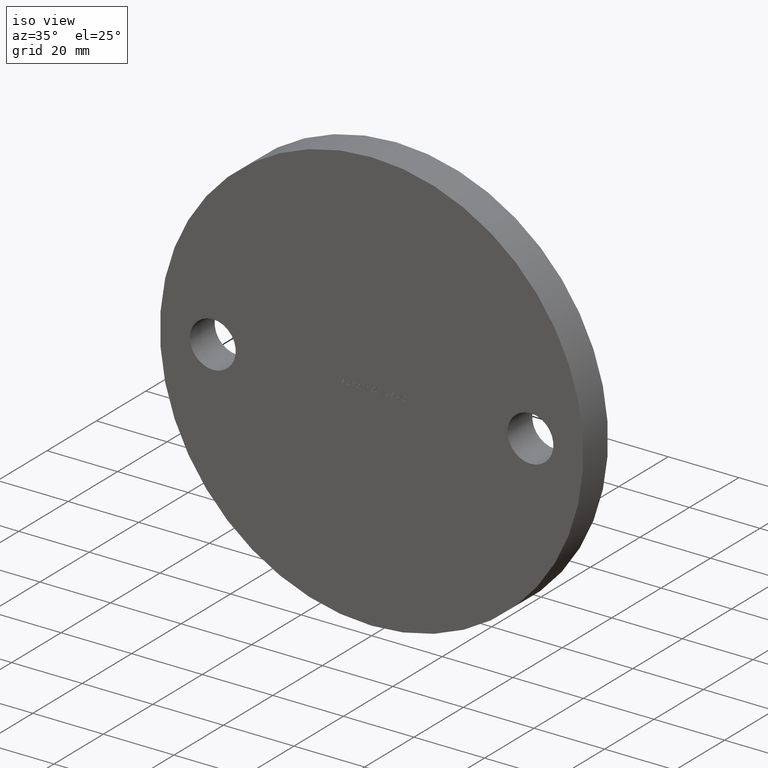
[diagram: clean part render]
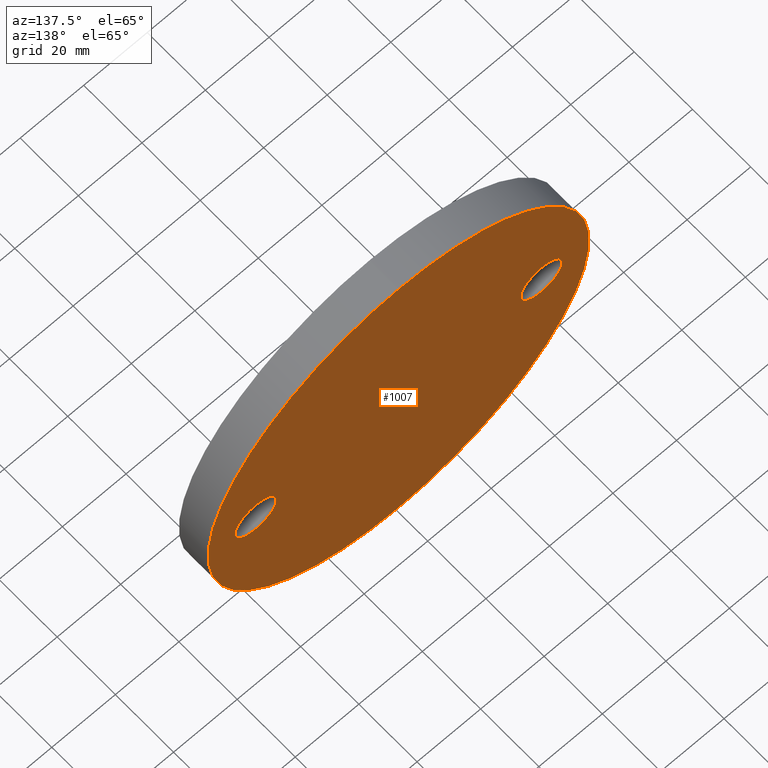
[diagram: tour spotlight — one face highlighted and labeled with its STEP entity id]
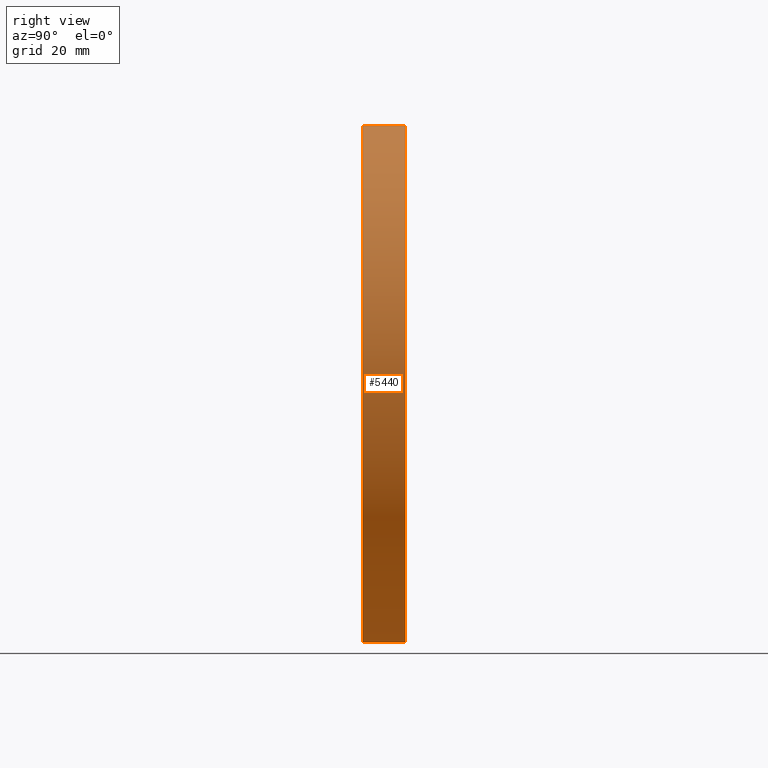
[diagram: tour spotlight — one face highlighted and labeled with its STEP entity id]
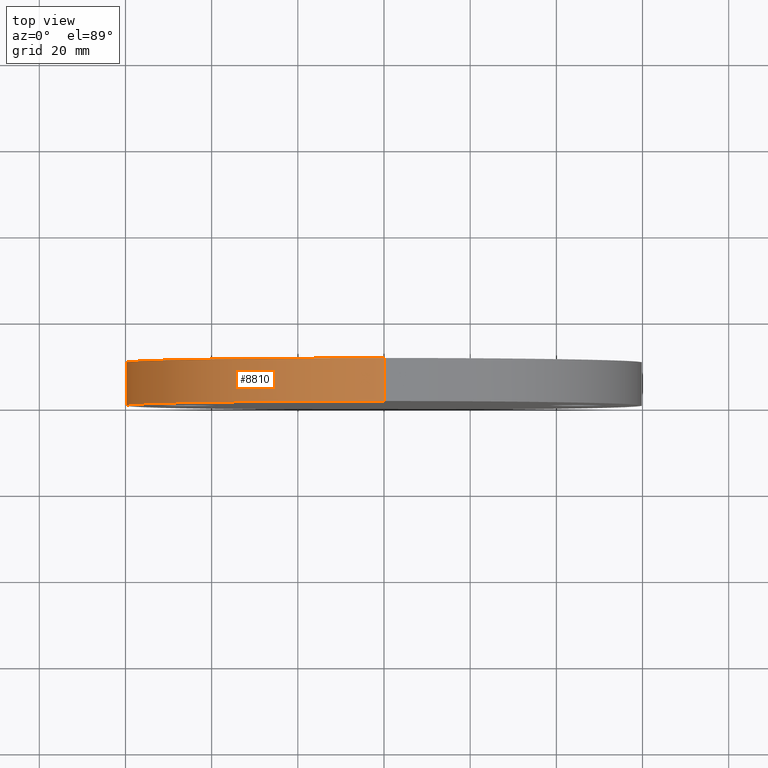
[diagram: tour spotlight — one face highlighted and labeled with its STEP entity id]
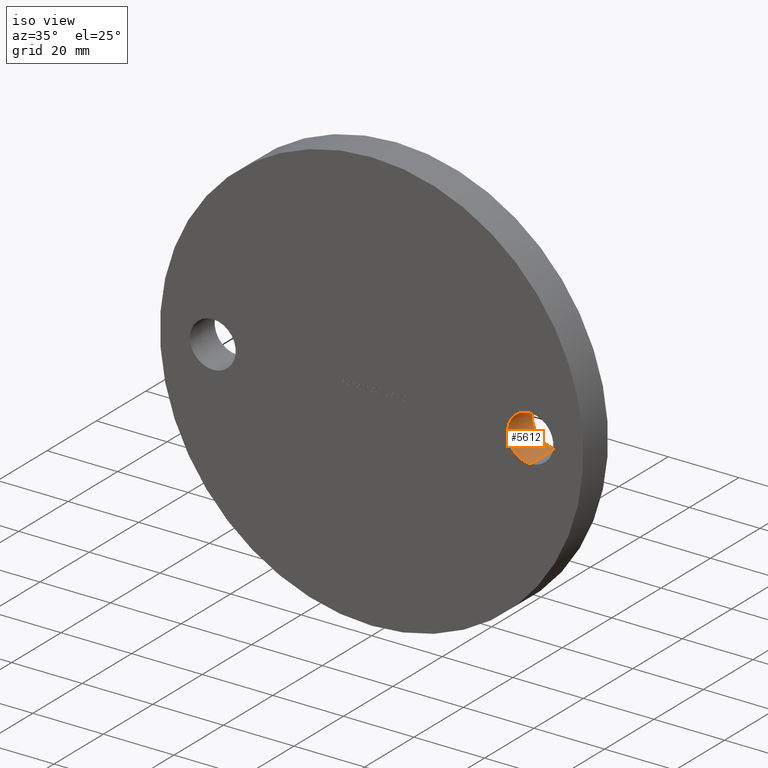
[diagram: tour spotlight — one face highlighted and labeled with its STEP entity id]
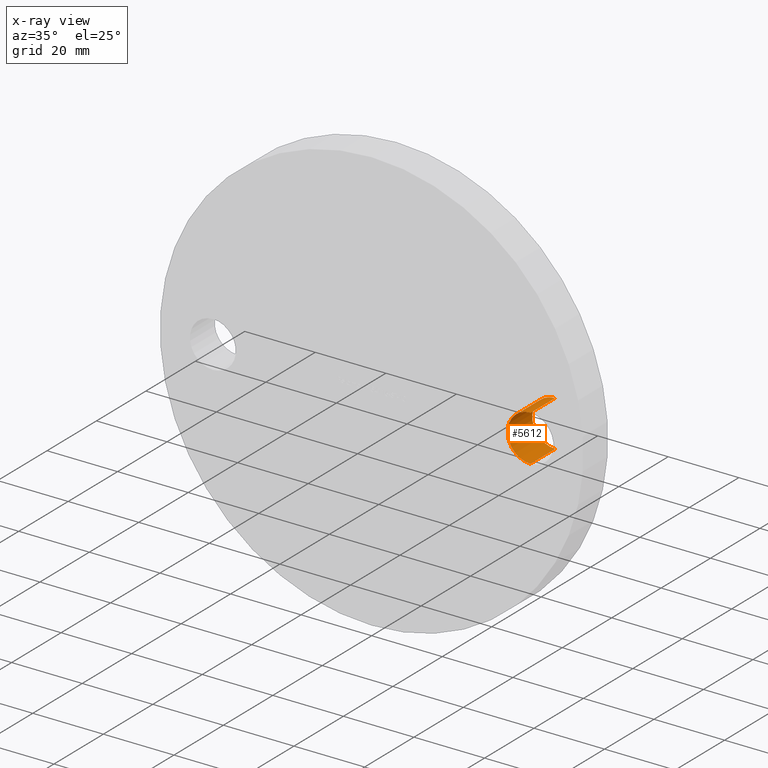
[diagram: x-ray of the same camera — body ghosted, this tour face saturated]
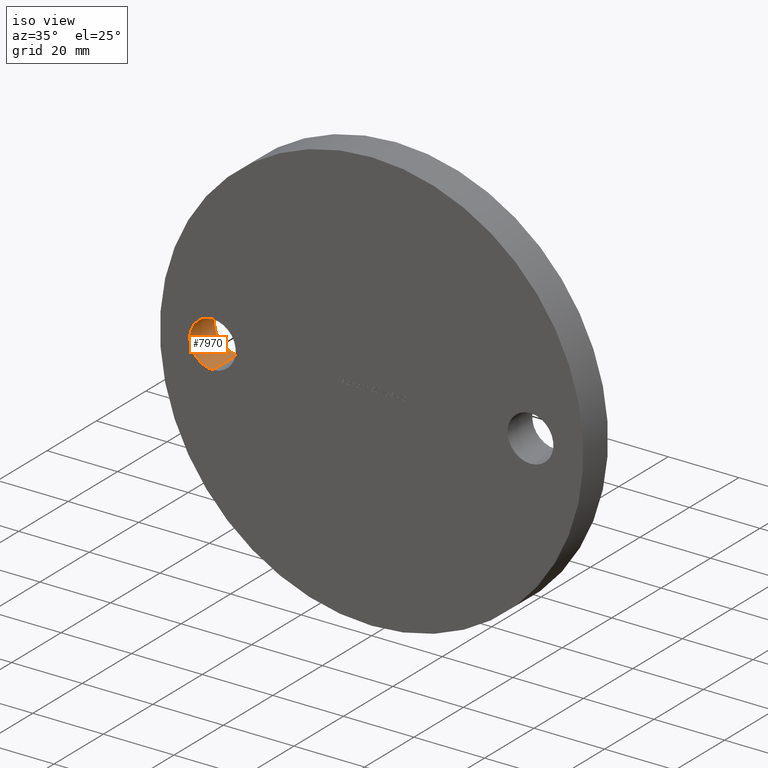
[diagram: tour spotlight — one face highlighted and labeled with its STEP entity id]
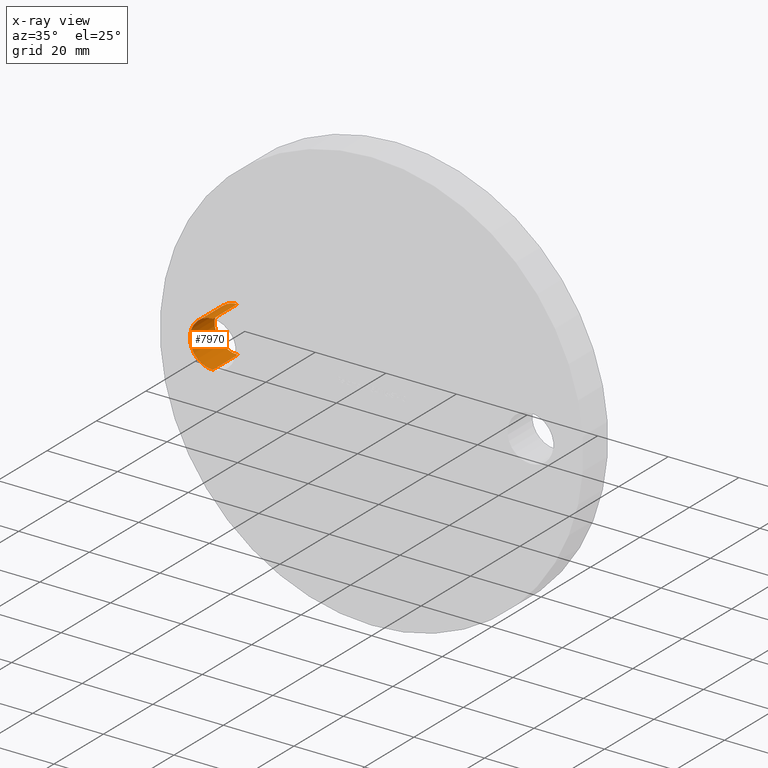
[diagram: x-ray of the same camera — body ghosted, this tour face saturated]
A machine part: a face-by-face anatomy tour. The part has 234 B-rep faces; the first image is the clean iso view, then the 5 largest visible faces are spotlighted one at a time (largest first), each with its STEP entity span.

Face 1 — auxiliary view, entity #1007. In plain terms, the highlighted planar face has unit normal (0, 1, 0).
Definition (entity closure, byte-faithful):
#53 = DIRECTION ( 'NONE',  ( 0.0000000000000000000, -0.0000000000000000000, 1.000000000000000000 ) ) ;
#97 = DIRECTION ( 'NONE',  ( 0.0000000000000000000, 0.0000000000000000000, 1.000000000000000000 ) ) ;
#177 = CIRCLE ( 'NONE', #9461, 6.500000000000000900 ) ;
#363 = VERTEX_POINT ( 'NONE', #6046 ) ;
#517 = AXIS2_PLACEMENT_3D ( 'NONE', #1575, #5285, #3481 ) ;
#558 = FACE_OUTER_BOUND ( 'NONE', #2222, .T. ) ;
#911 = DIRECTION ( 'NONE',  ( 0.0000000000000000000, 0.0000000000000000000, 1.000000000000000000 ) ) ;
#1007 = ADVANCED_FACE ( 'NONE', ( #7276, #4830, #558 ), #1871, .T. ) ;
#1575 = CARTESIAN_POINT ( 'NONE',  ( 45.00000000000000000, 10.00000000000000000, -1.102182119232617900E-014 ) ) ;
#1701 = CIRCLE ( 'NONE', #517, 6.500000000000000900 ) ;
#1871 = PLANE ( 'NONE',  #11096 ) ;
#1913 = DIRECTION ( 'NONE',  ( 0.0000000000000000000, 1.000000000000000000, 0.0000000000000000000 ) ) ;
#2222 = EDGE_LOOP ( 'NONE', ( #8137, #3180 ) ) ;
#2619 = CIRCLE ( 'NONE', #10737, 60.00000000000000000 ) ;
#2876 = EDGE_LOOP ( 'NONE', ( #11397, #5213 ) ) ;
#3129 = CARTESIAN_POINT ( 'NONE',  ( 45.00000000000000000, 10.00000000000000000, -6.500000000000011500 ) ) ;
#3180 = ORIENTED_EDGE ( 'NONE', *, *, #7922, .T. ) ;
#3190 = CARTESIAN_POINT ( 'NONE',  ( -45.00000000000000000, 10.00000000000000000, 0.0000000000000000000 ) ) ;
#3481 = DIRECTION ( 'NONE',  ( 0.0000000000000000000, 0.0000000000000000000, 1.000000000000000000 ) ) ;
#3763 = CARTESIAN_POINT ( 'NONE',  ( -45.00000000000000000, 10.00000000000000000, -6.500000000000000900 ) ) ;
#4724 = VERTEX_POINT ( 'NONE', #3763 ) ;
#4730 = DIRECTION ( 'NONE',  ( 0.0000000000000000000, 0.0000000000000000000, 1.000000000000000000 ) ) ;
#4830 = FACE_BOUND ( 'NONE', #5962, .T. ) ;
#5149 = ORIENTED_EDGE ( 'NONE', *, *, #6865, .F. ) ;
#5193 = CIRCLE ( 'NONE', #9751, 6.500000000000000900 ) ;
#5213 = ORIENTED_EDGE ( 'NONE', *, *, #11046, .F. ) ;
#5285 = DIRECTION ( 'NONE',  ( 0.0000000000000000000, 1.000000000000000000, 0.0000000000000000000 ) ) ;
#5357 = VERTEX_POINT ( 'NONE', #9296 ) ;
#5419 = ORIENTED_EDGE ( 'NONE', *, *, #10473, .F. ) ;
#5497 = CARTESIAN_POINT ( 'NONE',  ( 0.0000000000000000000, 10.00000000000000000, 0.0000000000000000000 ) ) ;
#5962 = EDGE_LOOP ( 'NONE', ( #5419, #5149 ) ) ;
#6046 = CARTESIAN_POINT ( 'NONE',  ( 7.347880794884118400E-015, 10.00000000000000000, 60.00000000000000000 ) ) ;
#6690 = CARTESIAN_POINT ( 'NONE',  ( 0.0000000000000000000, 10.00000000000000000, 0.0000000000000000000 ) ) ;
#6737 = EDGE_CURVE ( 'NONE', #5357, #363, #6782, .T. ) ;
#6782 = CIRCLE ( 'NONE', #9215, 60.00000000000000000 ) ;
#6865 = EDGE_CURVE ( 'NONE', #4724, #10152, #5193, .T. ) ;
#7143 = CARTESIAN_POINT ( 'NONE',  ( 45.00000000000000000, 10.00000000000000000, 6.499999999999989300 ) ) ;
#7276 = FACE_BOUND ( 'NONE', #2876, .T. ) ;
#7326 = CARTESIAN_POINT ( 'NONE',  ( -45.00000000000000000, 10.00000000000000000, 0.0000000000000000000 ) ) ;
#7400 = DIRECTION ( 'NONE',  ( 0.0000000000000000000, 1.000000000000000000, 0.0000000000000000000 ) ) ;
#7806 = VERTEX_POINT ( 'NONE', #7143 ) ;
#7922 = EDGE_CURVE ( 'NONE', #363, #5357, #2619, .T. ) ;
#8137 = ORIENTED_EDGE ( 'NONE', *, *, #6737, .T. ) ;
#8368 = CARTESIAN_POINT ( 'NONE',  ( -45.00000000000000000, 10.00000000000000000, 6.500000000000000900 ) ) ;
#8447 = CIRCLE ( 'NONE', #11049, 6.500000000000000900 ) ;
#8581 = DIRECTION ( 'NONE',  ( 0.0000000000000000000, 1.000000000000000000, 0.0000000000000000000 ) ) ;
#9058 = EDGE_CURVE ( 'NONE', #7806, #11370, #177, .T. ) ;
#9078 = CARTESIAN_POINT ( 'NONE',  ( 0.0000000000000000000, 10.00000000000000000, 0.0000000000000000000 ) ) ;
#9213 = CARTESIAN_POINT ( 'NONE',  ( 45.00000000000000000, 10.00000000000000000, -1.102182119232617900E-014 ) ) ;
#9215 = AXIS2_PLACEMENT_3D ( 'NONE', #9078, #10001, #911 ) ;
#9296 = CARTESIAN_POINT ( 'NONE',  ( 0.0000000000000000000, 10.00000000000000000, -60.00000000000000000 ) ) ;
#9461 = AXIS2_PLACEMENT_3D ( 'NONE', #9213, #10204, #4730 ) ;
#9560 = DIRECTION ( 'NONE',  ( 0.0000000000000000000, 0.0000000000000000000, 1.000000000000000000 ) ) ;
#9751 = AXIS2_PLACEMENT_3D ( 'NONE', #3190, #10502, #9560 ) ;
#10001 = DIRECTION ( 'NONE',  ( 0.0000000000000000000, 1.000000000000000000, 0.0000000000000000000 ) ) ;
#10152 = VERTEX_POINT ( 'NONE', #8368 ) ;
#10204 = DIRECTION ( 'NONE',  ( 0.0000000000000000000, 1.000000000000000000, 0.0000000000000000000 ) ) ;
#10473 = EDGE_CURVE ( 'NONE', #10152, #4724, #8447, .T. ) ;
#10502 = DIRECTION ( 'NONE',  ( 0.0000000000000000000, 1.000000000000000000, 0.0000000000000000000 ) ) ;
#10737 = AXIS2_PLACEMENT_3D ( 'NONE', #6690, #8581, #11210 ) ;
#11046 = EDGE_CURVE ( 'NONE', #11370, #7806, #1701, .T. ) ;
#11049 = AXIS2_PLACEMENT_3D ( 'NONE', #7326, #1913, #97 ) ;
#11096 = AXIS2_PLACEMENT_3D ( 'NONE', #5497, #7400, #53 ) ;
#11210 = DIRECTION ( 'NONE',  ( 0.0000000000000000000, 0.0000000000000000000, 1.000000000000000000 ) ) ;
#11370 = VERTEX_POINT ( 'NONE', #3129 ) ;
#11397 = ORIENTED_EDGE ( 'NONE', *, *, #9058, .F. ) ;

Face 2 — right view, entity #5440. In plain terms, the highlighted cylindrical surface (partial cylindrical patch) has radius 60 mm, axis along (-0, -1, -0).
Definition (entity closure, byte-faithful):
#167 = AXIS2_PLACEMENT_3D ( 'NONE', #1027, #6593, #4723 ) ;
#363 = VERTEX_POINT ( 'NONE', #6046 ) ;
#602 = CARTESIAN_POINT ( 'NONE',  ( 7.347880794884118400E-015, 0.0000000000000000000, 60.00000000000000000 ) ) ;
#908 = AXIS2_PLACEMENT_3D ( 'NONE', #9566, #3927, #4921 ) ;
#935 = ORIENTED_EDGE ( 'NONE', *, *, #7922, .F. ) ;
#966 = EDGE_LOOP ( 'NONE', ( #935, #9412, #6290, #3748 ) ) ;
#1027 = CARTESIAN_POINT ( 'NONE',  ( 0.0000000000000000000, 0.0000000000000000000, 0.0000000000000000000 ) ) ;
#1407 = EDGE_CURVE ( 'NONE', #5357, #10567, #6532, .T. ) ;
#1848 = DIRECTION ( 'NONE',  ( -0.0000000000000000000, -1.000000000000000000, -0.0000000000000000000 ) ) ;
#1954 = LINE ( 'NONE', #6432, #5237 ) ;
#2542 = EDGE_CURVE ( 'NONE', #363, #3301, #1954, .T. ) ;
#2619 = CIRCLE ( 'NONE', #10737, 60.00000000000000000 ) ;
#2865 = CARTESIAN_POINT ( 'NONE',  ( 0.0000000000000000000, 10.00000000000000000, -60.00000000000000000 ) ) ;
#3301 = VERTEX_POINT ( 'NONE', #602 ) ;
#3343 = FACE_OUTER_BOUND ( 'NONE', #966, .T. ) ;
#3748 = ORIENTED_EDGE ( 'NONE', *, *, #1407, .F. ) ;
#3754 = EDGE_CURVE ( 'NONE', #3301, #10567, #3817, .T. ) ;
#3817 = CIRCLE ( 'NONE', #167, 60.00000000000000000 ) ;
#3927 = DIRECTION ( 'NONE',  ( -0.0000000000000000000, -1.000000000000000000, -0.0000000000000000000 ) ) ;
#4723 = DIRECTION ( 'NONE',  ( 0.0000000000000000000, 0.0000000000000000000, 1.000000000000000000 ) ) ;
#4921 = DIRECTION ( 'NONE',  ( 0.0000000000000000000, 0.0000000000000000000, -1.000000000000000000 ) ) ;
#5237 = VECTOR ( 'NONE', #1848, 1000.000000000000000 ) ;
#5357 = VERTEX_POINT ( 'NONE', #9296 ) ;
#5440 = ADVANCED_FACE ( 'NONE', ( #3343 ), #6940, .T. ) ;
#6046 = CARTESIAN_POINT ( 'NONE',  ( 7.347880794884118400E-015, 10.00000000000000000, 60.00000000000000000 ) ) ;
#6290 = ORIENTED_EDGE ( 'NONE', *, *, #3754, .T. ) ;
#6432 = CARTESIAN_POINT ( 'NONE',  ( 7.347880794884118400E-015, 10.00000000000000000, 60.00000000000000000 ) ) ;
#6532 = LINE ( 'NONE', #2865, #9966 ) ;
#6593 = DIRECTION ( 'NONE',  ( 0.0000000000000000000, 1.000000000000000000, 0.0000000000000000000 ) ) ;
#6690 = CARTESIAN_POINT ( 'NONE',  ( 0.0000000000000000000, 10.00000000000000000, 0.0000000000000000000 ) ) ;
#6940 = CYLINDRICAL_SURFACE ( 'NONE', #908, 60.00000000000000000 ) ;
#7922 = EDGE_CURVE ( 'NONE', #363, #5357, #2619, .T. ) ;
#8581 = DIRECTION ( 'NONE',  ( 0.0000000000000000000, 1.000000000000000000, 0.0000000000000000000 ) ) ;
#9199 = CARTESIAN_POINT ( 'NONE',  ( 0.0000000000000000000, 0.0000000000000000000, -60.00000000000000000 ) ) ;
#9296 = CARTESIAN_POINT ( 'NONE',  ( 0.0000000000000000000, 10.00000000000000000, -60.00000000000000000 ) ) ;
#9412 = ORIENTED_EDGE ( 'NONE', *, *, #2542, .T. ) ;
#9566 = CARTESIAN_POINT ( 'NONE',  ( 0.0000000000000000000, 10.00000000000000000, 0.0000000000000000000 ) ) ;
#9966 = VECTOR ( 'NONE', #10969, 1000.000000000000000 ) ;
#10567 = VERTEX_POINT ( 'NONE', #9199 ) ;
#10737 = AXIS2_PLACEMENT_3D ( 'NONE', #6690, #8581, #11210 ) ;
#10969 = DIRECTION ( 'NONE',  ( -0.0000000000000000000, -1.000000000000000000, -0.0000000000000000000 ) ) ;
#11210 = DIRECTION ( 'NONE',  ( 0.0000000000000000000, 0.0000000000000000000, 1.000000000000000000 ) ) ;

Face 3 — top view, entity #8810. In plain terms, the highlighted cylindrical surface (partial cylindrical patch) has radius 60 mm, axis along (-0, -1, -0).
Definition (entity closure, byte-faithful):
#363 = VERTEX_POINT ( 'NONE', #6046 ) ;
#602 = CARTESIAN_POINT ( 'NONE',  ( 7.347880794884118400E-015, 0.0000000000000000000, 60.00000000000000000 ) ) ;
#911 = DIRECTION ( 'NONE',  ( 0.0000000000000000000, 0.0000000000000000000, 1.000000000000000000 ) ) ;
#1407 = EDGE_CURVE ( 'NONE', #5357, #10567, #6532, .T. ) ;
#1614 = ORIENTED_EDGE ( 'NONE', *, *, #2542, .F. ) ;
#1848 = DIRECTION ( 'NONE',  ( -0.0000000000000000000, -1.000000000000000000, -0.0000000000000000000 ) ) ;
#1954 = LINE ( 'NONE', #6432, #5237 ) ;
#2542 = EDGE_CURVE ( 'NONE', #363, #3301, #1954, .T. ) ;
#2863 = CIRCLE ( 'NONE', #6009, 60.00000000000000000 ) ;
#2865 = CARTESIAN_POINT ( 'NONE',  ( 0.0000000000000000000, 10.00000000000000000, -60.00000000000000000 ) ) ;
#2942 = AXIS2_PLACEMENT_3D ( 'NONE', #11599, #5280, #5174 ) ;
#3301 = VERTEX_POINT ( 'NONE', #602 ) ;
#4316 = CYLINDRICAL_SURFACE ( 'NONE', #2942, 60.00000000000000000 ) ;
#4612 = CARTESIAN_POINT ( 'NONE',  ( 0.0000000000000000000, 0.0000000000000000000, 0.0000000000000000000 ) ) ;
#5174 = DIRECTION ( 'NONE',  ( 0.0000000000000000000, 0.0000000000000000000, -1.000000000000000000 ) ) ;
#5237 = VECTOR ( 'NONE', #1848, 1000.000000000000000 ) ;
#5280 = DIRECTION ( 'NONE',  ( -0.0000000000000000000, -1.000000000000000000, -0.0000000000000000000 ) ) ;
#5357 = VERTEX_POINT ( 'NONE', #9296 ) ;
#5469 = DIRECTION ( 'NONE',  ( 0.0000000000000000000, 0.0000000000000000000, 1.000000000000000000 ) ) ;
#6009 = AXIS2_PLACEMENT_3D ( 'NONE', #4612, #7343, #5469 ) ;
#6046 = CARTESIAN_POINT ( 'NONE',  ( 7.347880794884118400E-015, 10.00000000000000000, 60.00000000000000000 ) ) ;
#6432 = CARTESIAN_POINT ( 'NONE',  ( 7.347880794884118400E-015, 10.00000000000000000, 60.00000000000000000 ) ) ;
#6532 = LINE ( 'NONE', #2865, #9966 ) ;
#6737 = EDGE_CURVE ( 'NONE', #5357, #363, #6782, .T. ) ;
#6782 = CIRCLE ( 'NONE', #9215, 60.00000000000000000 ) ;
#7343 = DIRECTION ( 'NONE',  ( 0.0000000000000000000, 1.000000000000000000, 0.0000000000000000000 ) ) ;
#8611 = FACE_OUTER_BOUND ( 'NONE', #9663, .T. ) ;
#8808 = ORIENTED_EDGE ( 'NONE', *, *, #11180, .T. ) ;
#8810 = ADVANCED_FACE ( 'NONE', ( #8611 ), #4316, .T. ) ;
#9042 = ORIENTED_EDGE ( 'NONE', *, *, #6737, .F. ) ;
#9078 = CARTESIAN_POINT ( 'NONE',  ( 0.0000000000000000000, 10.00000000000000000, 0.0000000000000000000 ) ) ;
#9134 = ORIENTED_EDGE ( 'NONE', *, *, #1407, .T. ) ;
#9199 = CARTESIAN_POINT ( 'NONE',  ( 0.0000000000000000000, 0.0000000000000000000, -60.00000000000000000 ) ) ;
#9215 = AXIS2_PLACEMENT_3D ( 'NONE', #9078, #10001, #911 ) ;
#9296 = CARTESIAN_POINT ( 'NONE',  ( 0.0000000000000000000, 10.00000000000000000, -60.00000000000000000 ) ) ;
#9663 = EDGE_LOOP ( 'NONE', ( #1614, #9042, #9134, #8808 ) ) ;
#9966 = VECTOR ( 'NONE', #10969, 1000.000000000000000 ) ;
#10001 = DIRECTION ( 'NONE',  ( 0.0000000000000000000, 1.000000000000000000, 0.0000000000000000000 ) ) ;
#10567 = VERTEX_POINT ( 'NONE', #9199 ) ;
#10969 = DIRECTION ( 'NONE',  ( -0.0000000000000000000, -1.000000000000000000, -0.0000000000000000000 ) ) ;
#11180 = EDGE_CURVE ( 'NONE', #10567, #3301, #2863, .T. ) ;
#11599 = CARTESIAN_POINT ( 'NONE',  ( 0.0000000000000000000, 10.00000000000000000, 0.0000000000000000000 ) ) ;

Face 4 — iso view, entity #5612. An x-ray twin of the same camera follows (body ghosted, this face saturated) — the face is partly hidden behind the body. In plain terms, the highlighted cylindrical surface (edge-blend (fillet) strip) has radius 6.5 mm, axis along (-0, 1, -0).
Definition (entity closure, byte-faithful):
#517 = AXIS2_PLACEMENT_3D ( 'NONE', #1575, #5285, #3481 ) ;
#541 = LINE ( 'NONE', #8584, #1808 ) ;
#675 = VERTEX_POINT ( 'NONE', #3092 ) ;
#711 = EDGE_CURVE ( 'NONE', #10568, #7806, #11417, .T. ) ;
#1053 = CYLINDRICAL_SURFACE ( 'NONE', #5421, 6.500000000000000900 ) ;
#1428 = EDGE_CURVE ( 'NONE', #675, #11370, #541, .T. ) ;
#1575 = CARTESIAN_POINT ( 'NONE',  ( 45.00000000000000000, 10.00000000000000000, -1.102182119232617900E-014 ) ) ;
#1631 = DIRECTION ( 'NONE',  ( 0.0000000000000000000, 0.0000000000000000000, 1.000000000000000000 ) ) ;
#1701 = CIRCLE ( 'NONE', #517, 6.500000000000000900 ) ;
#1808 = VECTOR ( 'NONE', #4859, 1000.000000000000000 ) ;
#3033 = EDGE_LOOP ( 'NONE', ( #6568, #10469, #4360, #8462 ) ) ;
#3092 = CARTESIAN_POINT ( 'NONE',  ( 45.00000000000000000, 0.0000000000000000000, -6.500000000000011500 ) ) ;
#3129 = CARTESIAN_POINT ( 'NONE',  ( 45.00000000000000000, 10.00000000000000000, -6.500000000000011500 ) ) ;
#3145 = CIRCLE ( 'NONE', #7391, 6.500000000000000900 ) ;
#3481 = DIRECTION ( 'NONE',  ( 0.0000000000000000000, 0.0000000000000000000, 1.000000000000000000 ) ) ;
#3993 = CARTESIAN_POINT ( 'NONE',  ( 45.00000000000000000, 0.0000000000000000000, 6.499999999999989300 ) ) ;
#4360 = ORIENTED_EDGE ( 'NONE', *, *, #11046, .T. ) ;
#4859 = DIRECTION ( 'NONE',  ( -0.0000000000000000000, 1.000000000000000000, -0.0000000000000000000 ) ) ;
#4886 = CARTESIAN_POINT ( 'NONE',  ( 45.00000000000000000, 0.0000000000000000000, 6.499999999999989300 ) ) ;
#5285 = DIRECTION ( 'NONE',  ( 0.0000000000000000000, 1.000000000000000000, 0.0000000000000000000 ) ) ;
#5421 = AXIS2_PLACEMENT_3D ( 'NONE', #11659, #10779, #1631 ) ;
#5612 = ADVANCED_FACE ( 'NONE', ( #6204 ), #1053, .F. ) ;
#6204 = FACE_OUTER_BOUND ( 'NONE', #3033, .T. ) ;
#6568 = ORIENTED_EDGE ( 'NONE', *, *, #10669, .F. ) ;
#6850 = VECTOR ( 'NONE', #11439, 1000.000000000000000 ) ;
#7143 = CARTESIAN_POINT ( 'NONE',  ( 45.00000000000000000, 10.00000000000000000, 6.499999999999989300 ) ) ;
#7391 = AXIS2_PLACEMENT_3D ( 'NONE', #8215, #8141, #9986 ) ;
#7806 = VERTEX_POINT ( 'NONE', #7143 ) ;
#8141 = DIRECTION ( 'NONE',  ( 0.0000000000000000000, 1.000000000000000000, 0.0000000000000000000 ) ) ;
#8215 = CARTESIAN_POINT ( 'NONE',  ( 45.00000000000000000, 0.0000000000000000000, -1.102182119232617900E-014 ) ) ;
#8462 = ORIENTED_EDGE ( 'NONE', *, *, #711, .F. ) ;
#8584 = CARTESIAN_POINT ( 'NONE',  ( 45.00000000000000000, 0.0000000000000000000, -6.500000000000011500 ) ) ;
#9986 = DIRECTION ( 'NONE',  ( 0.0000000000000000000, 0.0000000000000000000, 1.000000000000000000 ) ) ;
#10469 = ORIENTED_EDGE ( 'NONE', *, *, #1428, .T. ) ;
#10568 = VERTEX_POINT ( 'NONE', #3993 ) ;
#10669 = EDGE_CURVE ( 'NONE', #675, #10568, #3145, .T. ) ;
#10779 = DIRECTION ( 'NONE',  ( -0.0000000000000000000, 1.000000000000000000, -0.0000000000000000000 ) ) ;
#11046 = EDGE_CURVE ( 'NONE', #11370, #7806, #1701, .T. ) ;
#11370 = VERTEX_POINT ( 'NONE', #3129 ) ;
#11417 = LINE ( 'NONE', #4886, #6850 ) ;
#11439 = DIRECTION ( 'NONE',  ( -0.0000000000000000000, 1.000000000000000000, -0.0000000000000000000 ) ) ;
#11659 = CARTESIAN_POINT ( 'NONE',  ( 45.00000000000000000, 0.0000000000000000000, -1.102182119232617900E-014 ) ) ;

Face 5 — iso view, entity #7970. An x-ray twin of the same camera follows (body ghosted, this face saturated) — the face is partly hidden behind the body. In plain terms, the highlighted cylindrical surface (edge-blend (fillet) strip) has radius 6.5 mm, axis along (-0, 1, -0).
Definition (entity closure, byte-faithful):
#235 = ORIENTED_EDGE ( 'NONE', *, *, #2939, .T. ) ;
#919 = CARTESIAN_POINT ( 'NONE',  ( -45.00000000000000000, 0.0000000000000000000, 6.500000000000000900 ) ) ;
#1606 = EDGE_LOOP ( 'NONE', ( #3972, #235, #2027, #9985 ) ) ;
#2027 = ORIENTED_EDGE ( 'NONE', *, *, #6865, .T. ) ;
#2452 = DIRECTION ( 'NONE',  ( 0.0000000000000000000, 1.000000000000000000, 0.0000000000000000000 ) ) ;
#2622 = EDGE_CURVE ( 'NONE', #6506, #10152, #11662, .T. ) ;
#2939 = EDGE_CURVE ( 'NONE', #11596, #4724, #10942, .T. ) ;
#3036 = CYLINDRICAL_SURFACE ( 'NONE', #8454, 6.500000000000000900 ) ;
#3190 = CARTESIAN_POINT ( 'NONE',  ( -45.00000000000000000, 10.00000000000000000, 0.0000000000000000000 ) ) ;
#3354 = CARTESIAN_POINT ( 'NONE',  ( -45.00000000000000000, 0.0000000000000000000, -6.500000000000000900 ) ) ;
#3600 = DIRECTION ( 'NONE',  ( -0.0000000000000000000, 1.000000000000000000, -0.0000000000000000000 ) ) ;
#3763 = CARTESIAN_POINT ( 'NONE',  ( -45.00000000000000000, 10.00000000000000000, -6.500000000000000900 ) ) ;
#3972 = ORIENTED_EDGE ( 'NONE', *, *, #11444, .F. ) ;
#4073 = CIRCLE ( 'NONE', #6869, 6.500000000000000900 ) ;
#4078 = VECTOR ( 'NONE', #7037, 1000.000000000000000 ) ;
#4724 = VERTEX_POINT ( 'NONE', #3763 ) ;
#5193 = CIRCLE ( 'NONE', #9751, 6.500000000000000900 ) ;
#5996 = DIRECTION ( 'NONE',  ( 0.0000000000000000000, 0.0000000000000000000, 1.000000000000000000 ) ) ;
#6031 = DIRECTION ( 'NONE',  ( 0.0000000000000000000, 0.0000000000000000000, 1.000000000000000000 ) ) ;
#6506 = VERTEX_POINT ( 'NONE', #9612 ) ;
#6865 = EDGE_CURVE ( 'NONE', #4724, #10152, #5193, .T. ) ;
#6869 = AXIS2_PLACEMENT_3D ( 'NONE', #11514, #2452, #6031 ) ;
#7037 = DIRECTION ( 'NONE',  ( -0.0000000000000000000, 1.000000000000000000, -0.0000000000000000000 ) ) ;
#7692 = CARTESIAN_POINT ( 'NONE',  ( -45.00000000000000000, 0.0000000000000000000, 0.0000000000000000000 ) ) ;
#7970 = ADVANCED_FACE ( 'NONE', ( #9628 ), #3036, .F. ) ;
#8094 = VECTOR ( 'NONE', #3600, 1000.000000000000000 ) ;
#8368 = CARTESIAN_POINT ( 'NONE',  ( -45.00000000000000000, 10.00000000000000000, 6.500000000000000900 ) ) ;
#8454 = AXIS2_PLACEMENT_3D ( 'NONE', #7692, #8653, #5996 ) ;
#8653 = DIRECTION ( 'NONE',  ( -0.0000000000000000000, 1.000000000000000000, -0.0000000000000000000 ) ) ;
#9162 = CARTESIAN_POINT ( 'NONE',  ( -45.00000000000000000, 0.0000000000000000000, -6.500000000000000900 ) ) ;
#9560 = DIRECTION ( 'NONE',  ( 0.0000000000000000000, 0.0000000000000000000, 1.000000000000000000 ) ) ;
#9612 = CARTESIAN_POINT ( 'NONE',  ( -45.00000000000000000, 0.0000000000000000000, 6.500000000000000900 ) ) ;
#9628 = FACE_OUTER_BOUND ( 'NONE', #1606, .T. ) ;
#9751 = AXIS2_PLACEMENT_3D ( 'NONE', #3190, #10502, #9560 ) ;
#9985 = ORIENTED_EDGE ( 'NONE', *, *, #2622, .F. ) ;
#10152 = VERTEX_POINT ( 'NONE', #8368 ) ;
#10502 = DIRECTION ( 'NONE',  ( 0.0000000000000000000, 1.000000000000000000, 0.0000000000000000000 ) ) ;
#10942 = LINE ( 'NONE', #3354, #4078 ) ;
#11444 = EDGE_CURVE ( 'NONE', #11596, #6506, #4073, .T. ) ;
#11514 = CARTESIAN_POINT ( 'NONE',  ( -45.00000000000000000, 0.0000000000000000000, 0.0000000000000000000 ) ) ;
#11596 = VERTEX_POINT ( 'NONE', #9162 ) ;
#11662 = LINE ( 'NONE', #919, #8094 ) ;